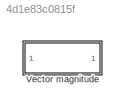
MODEL slx_4d1e83c0815f
KIND library
CONFIG AbsTol = auto
CONFIG EnableMultiTasking = off
CONFIG FixedStep = auto
CONFIG MaxStep = auto
CONFIG MinStep = auto
CONFIG RelTol = 1e-3
CONFIG SampleTimeConstraint = Unconstrained
CONFIG SolverName = VariableStepAuto
CONFIG StartTime = 0.0
CONFIG StopTime = 10.0
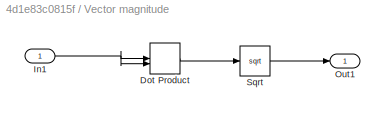
BLOCK [SubSystem] Vector magnitude
  Ports = [1, 1]
  RequestExecContextInheritance = off
BLOCK [DotProduct] Vector magnitude/Dot Product
  OutDataTypeStr = Inherit: Inherit via internal rule
BLOCK [Inport] Vector magnitude/In1
BLOCK [Outport] Vector magnitude/Out1
BLOCK [Sqrt] Vector magnitude/Sqrt
LINE Vector magnitude/Dot Product:1 -> Vector magnitude/Sqrt:1
NET Vector magnitude/In1:1 -> Vector magnitude/Dot Product:1, Vector magnitude/Dot Product:2
LINE Vector magnitude/Sqrt:1 -> Vector magnitude/Out1:1
note: NET lines group one-source signal fan-out (src -> all destinations, sorted); 1:1 wires keep LINE
